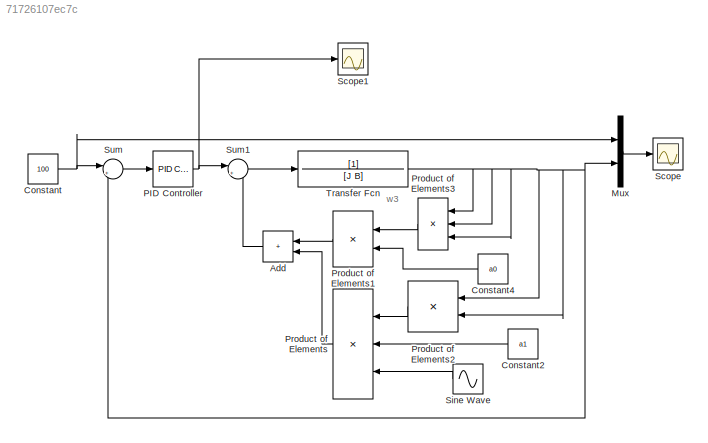
MODEL slx_71726107ec7c
KIND model
CONFIG AbsTol = auto
CONFIG EnableMultiTasking = off
CONFIG FixedStep = 0.0001
CONFIG InitFcn = J = 0.916e-6;\nB = 0.66e-6;\na0 = 0.738e-12;\na1 = 0.198e-10;
CONFIG MaxStep = auto
CONFIG MinStep = auto
CONFIG RelTol = 1e-6
CONFIG SampleTimeConstraint = Unconstrained
CONFIG Solver = VariableStepAuto
CONFIG SolverName = VariableStepAuto
CONFIG StartTime = 0.0
CONFIG StopTime = 10
BLOCK [Sum] Add
  IconShape = rectangular
  NameLocation = top
  Ports = [2, 1]
BLOCK [Constant] Constant
  Value = 100
BLOCK [Constant] Constant2
  NameLocation = top
  Value = a1
BLOCK [Constant] Constant4
  NameLocation = top
  Value = a0
BLOCK [Mux] Mux
  DisplayOption = bar
  Inputs = 2
  Ports = [2, 1]
BLOCK [Reference] PID Controller  REF=simulink/Continuous/PID Controller
  Ports = [1, 1]
  SourceBlock = simulink/Continuous/PID Controller
  SourceProductBaseCode = SL
  SourceType = PID 1dof
BLOCK [Product] Product of Elements
  Inputs = 3
  NameLocation = top
  Ports = [3, 1]
BLOCK [Product] Product of Elements1
  NameLocation = top
  Ports = [2, 1]
BLOCK [Product] Product of Elements2
  NameLocation = top
  Ports = [2, 1]
BLOCK [Product] Product of Elements3
  Inputs = 3
  NameLocation = top
  Ports = [3, 1]
BLOCK [Scope] Scope
  Floating = off
  NumInputPorts = 1
  Ports = [1]
  ScopeSpecificationString = Simulink.scopes.TimeScopeBlockCfg('CurrentConfiguration', extmgr.ConfigurationSet(extmgr.Configuration('Core','General UI',true),extmgr.Configuration('Core','Source UI',true),extmgr.Configuration('Sources','WiredSimulink',true),extmgr.Configuration('Visuals','Time Domain',true,'SerializedDisplays',{struct('MinYLimReal','-12.74411','MaxYLimReal','114.69703','YLabelReal','','MinYLimMag','0.00000','M...<+1452ch>
BLOCK [Scope] Scope1
  Floating = off
  NumInputPorts = 1
  Ports = [1]
  ScopeSpecificationString = Simulink.scopes.TimeScopeBlockCfg('CurrentConfiguration', extmgr.ConfigurationSet(extmgr.Configuration('Core','General UI',true),extmgr.Configuration('Core','Source UI',true),extmgr.Configuration('Sources','WiredSimulink',true,'DataLoggingVariableName','ScopeData1'),extmgr.Configuration('Visuals','Time Domain',true,'SerializedDisplays',{struct('MinYLimReal','0.00007','MaxYLimReal','0.00018','YLabe...<+1470ch>
BLOCK [Sin] Sine Wave
  Amplitude = 92
  Bias = 100
  Frequency = 2*pi*(1/0.67)
  NameLocation = top
  Ports = [0, 1]
  SampleTime = 0
BLOCK [Sum] Sum
  Inputs = |+-
  Ports = [2, 1]
BLOCK [Sum] Sum1
  Inputs = |+-
  Ports = [2, 1]
BLOCK [TransferFcn] Transfer Fcn
  Denominator = [J   B]
ANNOTATION (root): w3
LINE Add:1 -> Sum1:2
LINE Constant2:1 -> Product of Elements:2
LINE Constant4:1 -> Product of Elements1:2
NET Constant:1 -> Mux:1, Sum:1
LINE Mux:1 -> Scope:1
NET PID Controller:1 -> Scope1:1, Sum1:1
LINE Product of Elements1:1 -> Add:1
LINE Product of Elements2:1 -> Product of Elements:1
LINE Product of Elements3:1 -> Product of Elements1:1
LINE Product of Elements:1 -> Add:2
LINE Sine Wave:1 -> Product of Elements:3
LINE Sum1:1 -> Transfer Fcn:1
LINE Sum:1 -> PID Controller:1
NET Transfer Fcn:1 -> Mux:2, Product of Elements2:1, Product of Elements2:2, Product of Elements3:1, Product of Elements3:2, Product of Elements3:3, Sum:2
note: NET lines group one-source signal fan-out (src -> all destinations, sorted); 1:1 wires keep LINE
